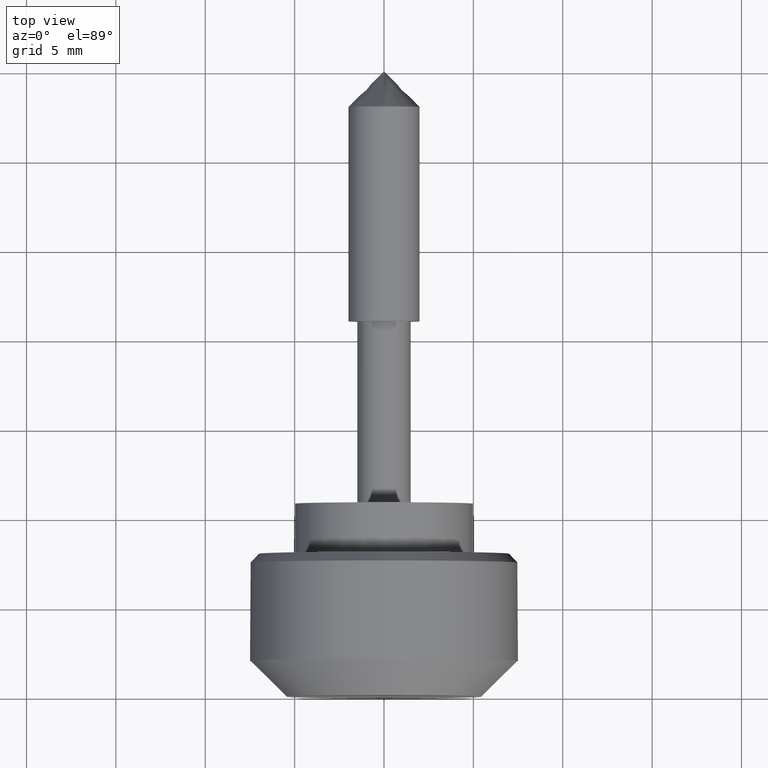
[diagram: clean part render]
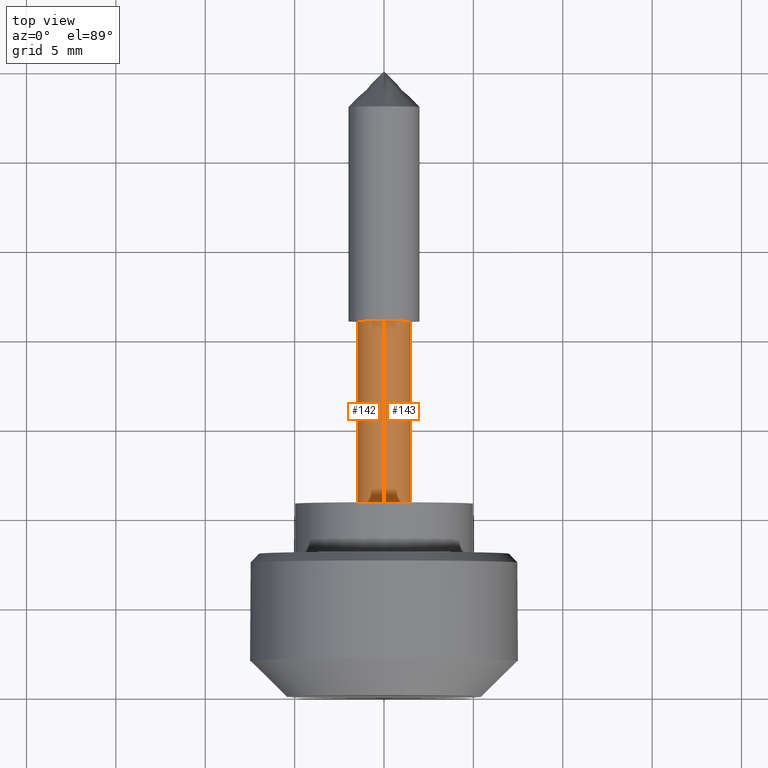
[diagram: same view with one multi-face feature highlighted, each face labeled with its STEP entity id]
A machine part, top view. The highlighted faces form ONE feature: a constant-radius fillet chain: 2 tangent blend faces with common blend radius 1.5 mm. The faces share edges in the B-rep.
Their STEP definitions:
[1] entity #143 (Cylinder):
#143=ADVANCED_FACE('',(#466),#465,.T.);
#465=CYLINDRICAL_SURFACE('',#722,1.50000000000E+00);
#466=FACE_OUTER_BOUND('',#723,.T.);
#719=CARTESIAN_POINT('',(1.00000000000E+03,0.00000000000E+00,0.00000000000E+00));
#720=DIRECTION('',(1.00000000000E+00,-0.00000000000E+00,-0.00000000000E+00));
#721=DIRECTION('',(-0.00000000000E+00,-0.00000000000E+00,-1.00000000000E+00));
#722=AXIS2_PLACEMENT_3D('',#719,#720,#721);
#723=EDGE_LOOP('',(#908,#909,#910,#911));
#908=ORIENTED_EDGE('',*,*,#986,.T.);
#909=ORIENTED_EDGE('',*,*,#1014,.T.);
#910=ORIENTED_EDGE('',*,*,#1003,.F.);
#911=ORIENTED_EDGE('',*,*,#1015,.F.);
#986=EDGE_CURVE('',#1346,#1347,#1348,.T.);
#1003=EDGE_CURVE('',#1456,#1455,#1463,.T.);
#1014=EDGE_CURVE('',#1347,#1455,#1532,.T.);
#1015=EDGE_CURVE('',#1346,#1456,#1538,.T.);
#1346=VERTEX_POINT('',#1793);
#1347=VERTEX_POINT('',#1794);
#1348=CIRCLE('',#1798,1.50000000000E+00);
#1455=VERTEX_POINT('',#1866);
#1456=VERTEX_POINT('',#1867);
#1463=CIRCLE('',#1875,1.50000000000E+00);
#1532=(BOUNDED_CURVE() B_SPLINE_CURVE(1,(#1911,#1912),.UNSPECIFIED.,.F.,.F.) B_SPLINE_CURVE_WITH_KNOTS((2,2),(8.33333343261E-02,9.16666667006E-01),.UNSPECIFIED.) CURVE() GEOMETRIC_REPRESENTATION_ITEM() RATIONAL_B_SPLINE_CURVE((1.00000000000E+00,1.00000000000E+00)) REPRESENTATION_ITEM('') );
#1538=(BOUNDED_CURVE() B_SPLINE_CURVE(1,(#1913,#1914),.UNSPECIFIED.,.F.,.F.) B_SPLINE_CURVE_WITH_KNOTS((2,2),(8.33333333333E-02,9.16666666667E-01),.UNSPECIFIED.) CURVE() GEOMETRIC_REPRESENTATION_ITEM() RATIONAL_B_SPLINE_CURVE((7.50000000000E-01,7.50000000000E-01)) REPRESENTATION_ITEM('') );
#1793=CARTESIAN_POINT('',(0.00000000000E+00,-7.40148683083E-17,1.50000000000E+00));
#1794=CARTESIAN_POINT('',(0.00000000000E+00,0.00000000000E+00,-1.50000000000E+00));
#1795=CARTESIAN_POINT('',(0.00000000000E+00,0.00000000000E+00,0.00000000000E+00));
#1796=DIRECTION('',(1.00000000000E+00,0.00000000000E+00,0.00000000000E+00));
#1797=DIRECTION('',(0.00000000000E+00,-1.22460635382E-16,-1.00000000000E+00));
#1798=AXIS2_PLACEMENT_3D('',#1795,#1796,#1797);
#1866=CARTESIAN_POINT('',(1.10000000000E+01,0.00000000000E+00,-1.50000000000E+00));
#1867=CARTESIAN_POINT('',(1.10000000000E+01,-7.40148683083E-17,1.50000000000E+00));
#1872=CARTESIAN_POINT('',(1.10000000000E+01,0.00000000000E+00,0.00000000000E+00));
#1873=DIRECTION('',(1.00000000000E+00,0.00000000000E+00,0.00000000000E+00));
#1874=DIRECTION('',(0.00000000000E+00,-1.22460635382E-16,-1.00000000000E+00));
#1875=AXIS2_PLACEMENT_3D('',#1872,#1873,#1874);
#1911=CARTESIAN_POINT('',(1.31042026119E-08,0.00000000000E+00,-1.50000000000E+00));
#1912=CARTESIAN_POINT('',(1.10000000045E+01,0.00000000000E+00,-1.50000000000E+00));
#1913=CARTESIAN_POINT('',(1.48029736617E-16,-7.40148683083E-17,1.50000000000E+00));
#1914=CARTESIAN_POINT('',(1.10000000000E+01,-7.40148683083E-17,1.50000000000E+00));
[2] entity #142 (Cylinder):
#142=ADVANCED_FACE('',(#456),#455,.T.);
#455=CYLINDRICAL_SURFACE('',#717,1.50000000000E+00);
#456=FACE_OUTER_BOUND('',#718,.T.);
#714=CARTESIAN_POINT('',(1.00000000000E+03,0.00000000000E+00,0.00000000000E+00));
#715=DIRECTION('',(1.00000000000E+00,-0.00000000000E+00,-0.00000000000E+00));
#716=DIRECTION('',(-0.00000000000E+00,-0.00000000000E+00,-1.00000000000E+00));
#717=AXIS2_PLACEMENT_3D('',#714,#715,#716);
#718=EDGE_LOOP('',(#904,#905,#906,#907));
#904=ORIENTED_EDGE('',*,*,#1002,.F.);
#905=ORIENTED_EDGE('',*,*,#1014,.F.);
#906=ORIENTED_EDGE('',*,*,#987,.T.);
#907=ORIENTED_EDGE('',*,*,#1015,.T.);
#987=EDGE_CURVE('',#1347,#1346,#1354,.T.);
#1002=EDGE_CURVE('',#1455,#1456,#1457,.T.);
#1014=EDGE_CURVE('',#1347,#1455,#1532,.T.);
#1015=EDGE_CURVE('',#1346,#1456,#1538,.T.);
#1346=VERTEX_POINT('',#1793);
#1347=VERTEX_POINT('',#1794);
#1354=CIRCLE('',#1802,1.50000000000E+00);
#1455=VERTEX_POINT('',#1866);
#1456=VERTEX_POINT('',#1867);
#1457=CIRCLE('',#1871,1.50000000000E+00);
#1532=(BOUNDED_CURVE() B_SPLINE_CURVE(1,(#1911,#1912),.UNSPECIFIED.,.F.,.F.) B_SPLINE_CURVE_WITH_KNOTS((2,2),(8.33333343261E-02,9.16666667006E-01),.UNSPECIFIED.) CURVE() GEOMETRIC_REPRESENTATION_ITEM() RATIONAL_B_SPLINE_CURVE((1.00000000000E+00,1.00000000000E+00)) REPRESENTATION_ITEM('') );
#1538=(BOUNDED_CURVE() B_SPLINE_CURVE(1,(#1913,#1914),.UNSPECIFIED.,.F.,.F.) B_SPLINE_CURVE_WITH_KNOTS((2,2),(8.33333333333E-02,9.16666666667E-01),.UNSPECIFIED.) CURVE() GEOMETRIC_REPRESENTATION_ITEM() RATIONAL_B_SPLINE_CURVE((7.50000000000E-01,7.50000000000E-01)) REPRESENTATION_ITEM('') );
#1793=CARTESIAN_POINT('',(0.00000000000E+00,-7.40148683083E-17,1.50000000000E+00));
#1794=CARTESIAN_POINT('',(0.00000000000E+00,0.00000000000E+00,-1.50000000000E+00));
#1799=CARTESIAN_POINT('',(0.00000000000E+00,0.00000000000E+00,0.00000000000E+00));
#1800=DIRECTION('',(1.00000000000E+00,0.00000000000E+00,0.00000000000E+00));
#1801=DIRECTION('',(0.00000000000E+00,-1.22460635382E-16,-1.00000000000E+00));
#1802=AXIS2_PLACEMENT_3D('',#1799,#1800,#1801);
#1866=CARTESIAN_POINT('',(1.10000000000E+01,0.00000000000E+00,-1.50000000000E+00));
#1867=CARTESIAN_POINT('',(1.10000000000E+01,-7.40148683083E-17,1.50000000000E+00));
#1868=CARTESIAN_POINT('',(1.10000000000E+01,0.00000000000E+00,0.00000000000E+00));
#1869=DIRECTION('',(1.00000000000E+00,0.00000000000E+00,0.00000000000E+00));
#1870=DIRECTION('',(0.00000000000E+00,-1.22460635382E-16,-1.00000000000E+00));
#1871=AXIS2_PLACEMENT_3D('',#1868,#1869,#1870);
#1911=CARTESIAN_POINT('',(1.31042026119E-08,0.00000000000E+00,-1.50000000000E+00));
#1912=CARTESIAN_POINT('',(1.10000000045E+01,0.00000000000E+00,-1.50000000000E+00));
#1913=CARTESIAN_POINT('',(1.48029736617E-16,-7.40148683083E-17,1.50000000000E+00));
#1914=CARTESIAN_POINT('',(1.10000000000E+01,-7.40148683083E-17,1.50000000000E+00));